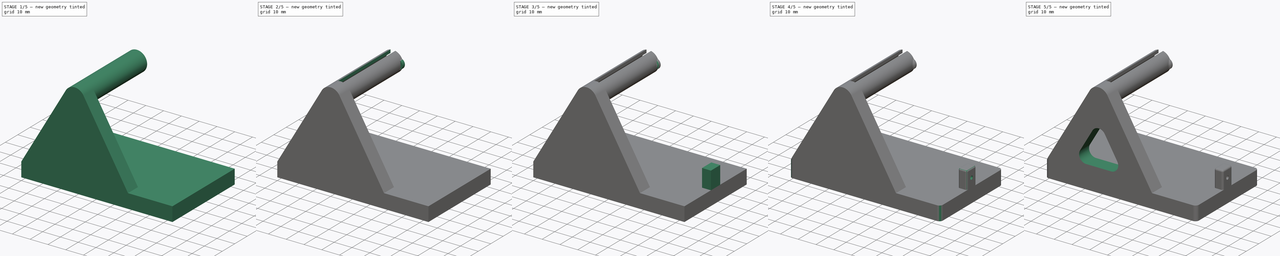
[diagram: build sequence overview — one tinted view per stage of 5, left to right]
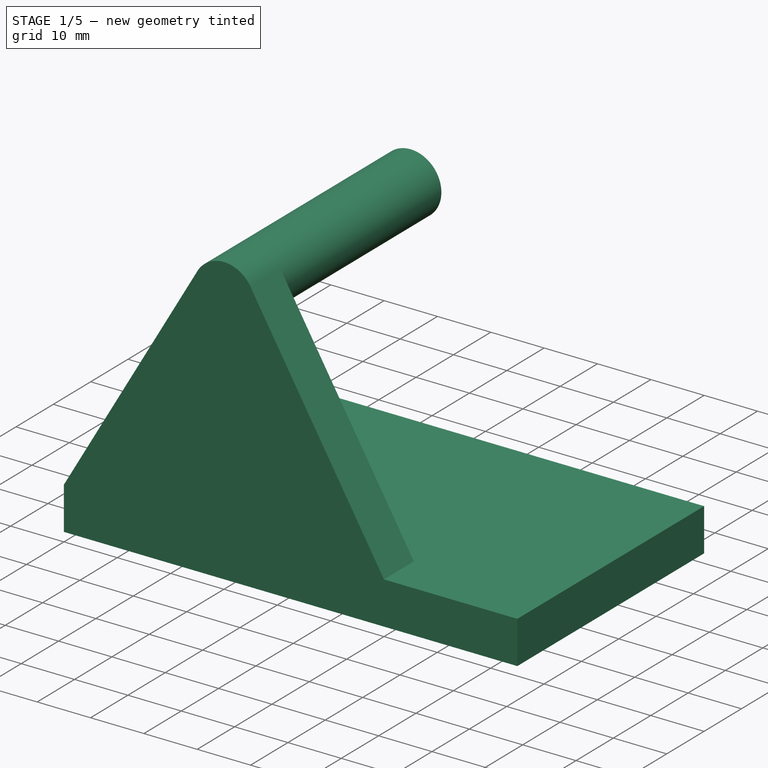
[diagram: stage 1 of 5 — iso view after this stage's code; geometry added in this stage tinted green]
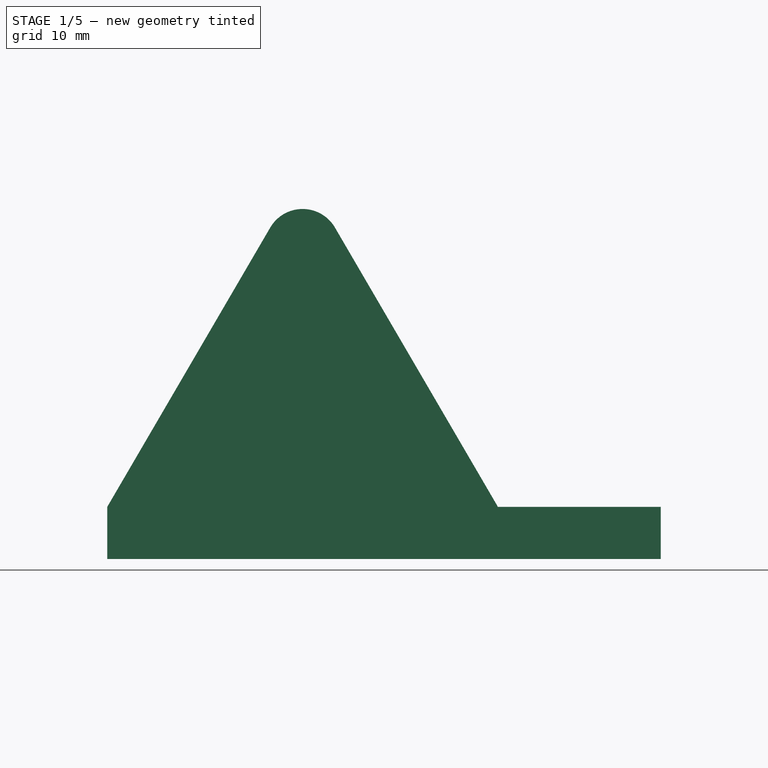
[diagram: stage 1 of 5 — front view after this stage's code; geometry added in this stage tinted green]
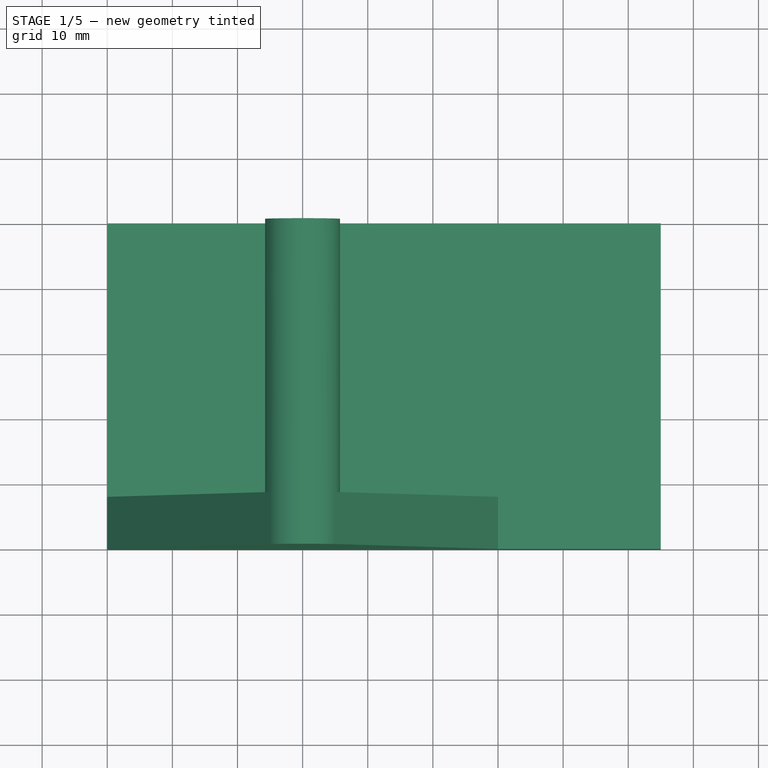
[diagram: stage 1 of 5 — top view after this stage's code; geometry added in this stage tinted green]
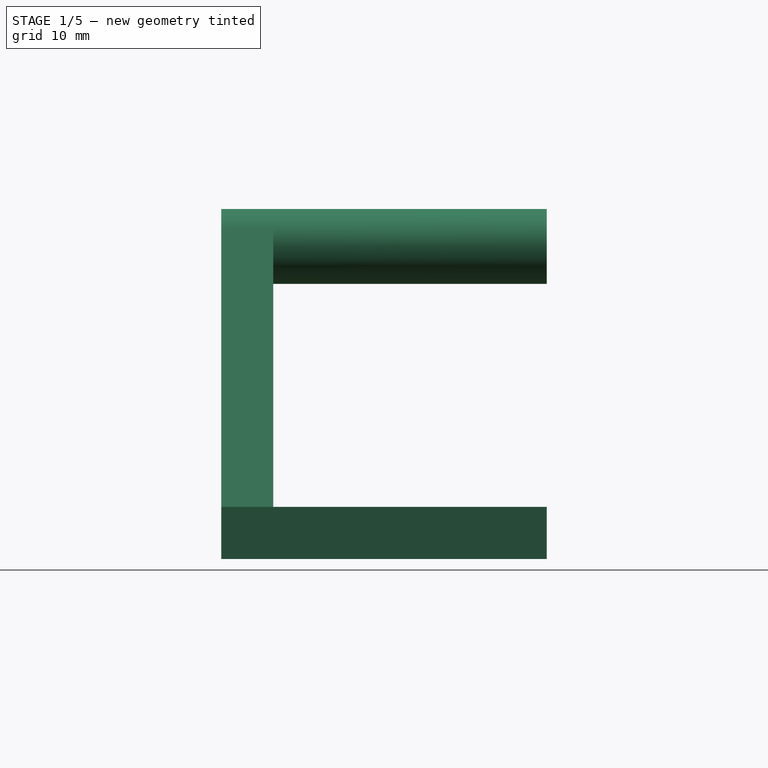
[diagram: stage 1 of 5 — right view after this stage's code; geometry added in this stage tinted green]
FCSTD DOCUMENT  (FreeCAD 0.19R24276 (Git))
Label: solder_spool_holder
License: All rights reserved
LicenseURL: http://en.wikipedia.org/wiki/All_rights_reserved
objects: Sketcher::SketchObject×9, PartDesign::Pad×5, PartDesign::Fillet×5, PartDesign::Pocket×4, PartDesign::Chamfer×4, PartDesign::Body×1
note: 46 computed .brp shape members not serialized (recipe doc carries the construction recipe); baked Part::Feature solids carry a one-line shape summary decoded from their .brp

FEATURE [Sketcher::SketchObject] Sketch
  FullyConstrained = true
  MapMode = 5
  Support = -> [XY_Plane]
  sketch-geometry (4):
    g0: LineSegment StartX=0 StartY=0 StartZ=0 EndX=85 EndY=0 EndZ=0
    g1: LineSegment StartX=85 StartY=0 StartZ=0 EndX=85 EndY=-50 EndZ=0
    g2: LineSegment StartX=85 StartY=-50 StartZ=0 EndX=0 EndY=-50 EndZ=0
    g3: LineSegment StartX=0 StartY=-50 StartZ=0 EndX=0 EndY=0 EndZ=0
  constraints (11):
    c: Coincident(g0,g1)
    c: Coincident(g1,g2)
    c: Coincident(g2,g3)
    c: Coincident(g3,g0)
    c: Horizontal(g0)
    c: Horizontal(g2)
    c: Vertical(g1)
    c: Vertical(g3)
    c: Coincident(g0,g-1)
    c: DistanceX(g0,g0) = 85
    c: DistanceY(g3,g3) = 50
FEATURE [PartDesign::Pad] Pad
  Direction = (1,1,1)
  Length = 8
  Length2 = 100
  Profile = -> Sketch
  Type = 0
FEATURE [Sketcher::SketchObject] Sketch001
  ExternalGeometry = -> [Pad]
  FullyConstrained = true
  MapMode = 5
  Placement = pos=(0,-50,0) rot=(1,0,0;1.5708rad)
  Support = -> [Pad]
  sketch-geometry (6):
    g0: LineSegment StartX=0 StartY=8 StartZ=0 EndX=25.0338 EndY=50.8981 EndZ=0
    g1: LineSegment StartX=34.9662 StartY=50.8981 StartZ=0 EndX=60 EndY=8 EndZ=0
    g2: ArcOfCircle CenterX=30 CenterY=48 CenterZ=0 NormalX=0 NormalY=0 NormalZ=1 AngleXU=0 Radius=5.75 StartAngle=0.528246 EndAngle=2.61335
    g3: GeomPoint X=30 Y=8 Z=0
    g4: LineSegment StartX=25.0338 StartY=50.8981 StartZ=0 EndX=30 EndY=48 EndZ=0
    g5: LineSegment StartX=0 StartY=8 StartZ=0 EndX=60 EndY=8 EndZ=0
  constraints (15):
    c: Coincident(g0,g-5)
    c: PointOnObject(g1,g-5)
    c: Coincident(g2,g0)
    c: Coincident(g2,g1)
    c: Horizontal(g1,g0)
    c: Distance(g2,g-5) = 40
    c: Symmetric(g0,g1,g3)
    c: Vertical(g3,g2)
    c: Radius(g2) = 5.75
    c: Coincident(g4,g0)
    c: Coincident(g4,g2)
    c: Perpendicular(g4,g0)
    c: DistanceX(g0,g1) = 60
    c: Coincident(g5,g0)
    c: Coincident(g5,g1)
FEATURE [PartDesign::Pad] Pad001
  BaseFeature = -> Pad
  Direction = (1,1,1)
  Length = 8
  Length2 = 100
  Profile = -> Sketch001
  Reversed = true
  Type = 0
FEATURE [Sketcher::SketchObject] Sketch002
  ExternalGeometry = -> [Pad001]
  FullyConstrained = true
  MapMode = 5
  Placement = pos=(0,-42,1.39e-14) rot=(0,0.707107,0.707107;3.14159rad)
  Support = -> [Pad001]
  sketch-geometry (1):
    g0: Circle CenterX=-30 CenterY=48 CenterZ=0 NormalX=0 NormalY=0 NormalZ=1 AngleXU=0 Radius=5.75
  constraints (2):
    c: Diameter(g0) = 11.5
    c: Coincident(g0,g-3)
FEATURE [PartDesign::Pad] Pad002
  BaseFeature = -> Pad001
  Direction = (1,1,1)
  Length = 42
  Length2 = 100
  Profile = -> Sketch002
  Type = 0
FEATURE [Sketcher::SketchObject] Sketch003
  ExternalGeometry = -> [Pad002]
  FullyConstrained = true
  MapMode = 5
  Placement = pos=(0,-2.51e-14,0) rot=(0,0.707107,0.707107;3.14159rad)
  Support = -> [Pad002]
  sketch-geometry (1):
    g0: Circle CenterX=-30 CenterY=48 CenterZ=0 NormalX=0 NormalY=0 NormalZ=1 AngleXU=0 Radius=4
  constraints (2):
    c: Coincident(g0,g-3)
    c: Diameter(g0) = 8
FEATURE [PartDesign::Pocket] Pocket
  BaseFeature = -> Pad002
  Length = 42
  Length2 = 100
  Profile = -> Sketch003
  Type = 0
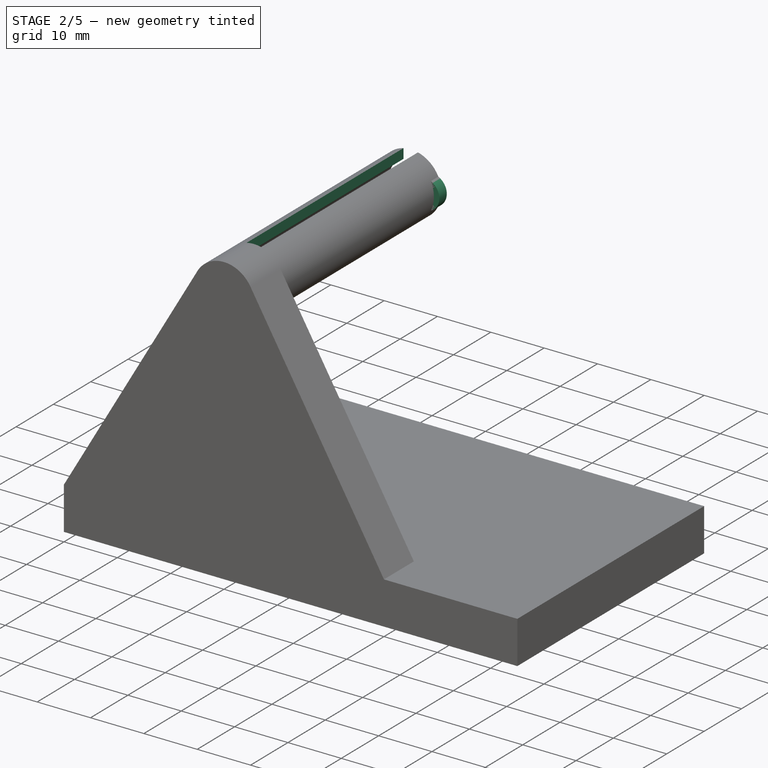
[diagram: stage 2 of 5 — iso view after this stage's code; geometry added in this stage tinted green]
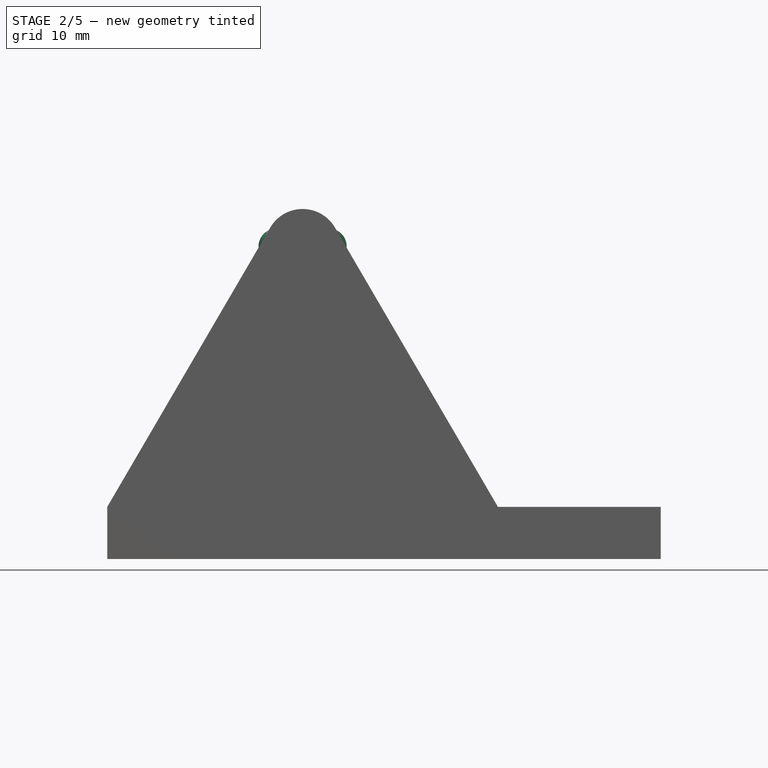
[diagram: stage 2 of 5 — front view after this stage's code; geometry added in this stage tinted green]
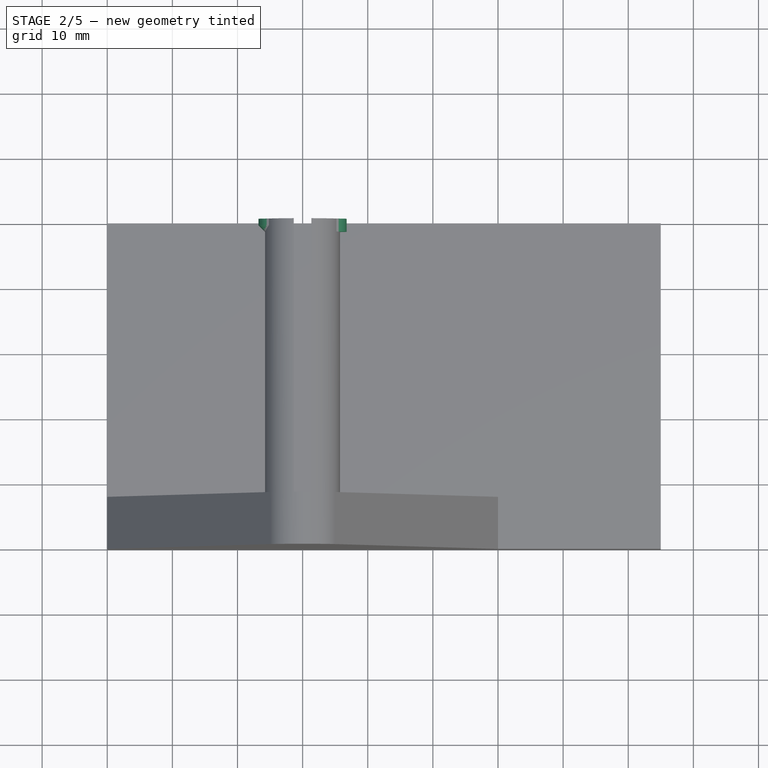
[diagram: stage 2 of 5 — top view after this stage's code; geometry added in this stage tinted green]
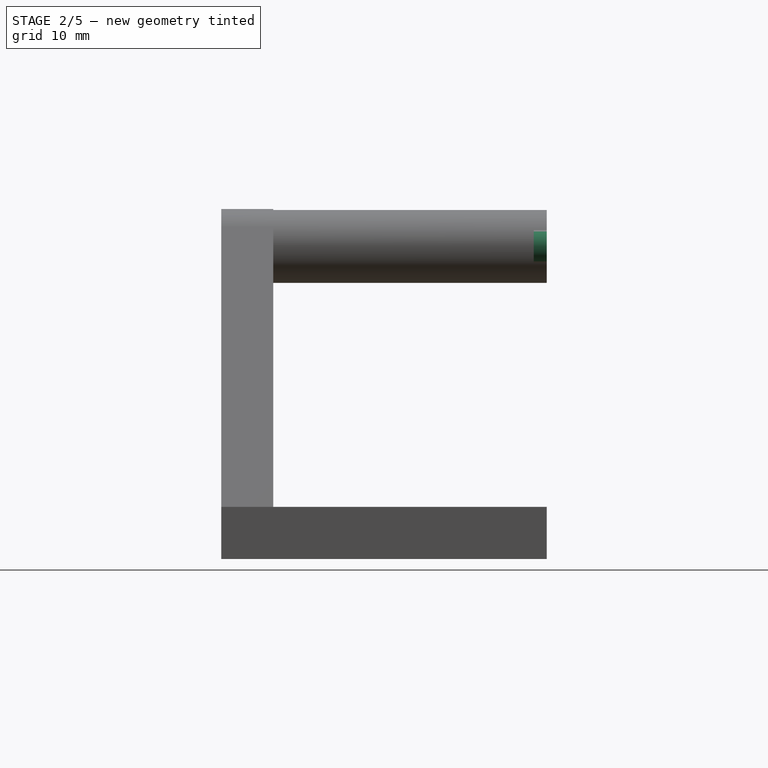
[diagram: stage 2 of 5 — right view after this stage's code; geometry added in this stage tinted green]
FEATURE [Sketcher::SketchObject] Sketch004
  ExternalGeometry = -> [Pocket]
  FullyConstrained = false
  MapMode = 5
  Placement = pos=(0,-2.51e-14,0) rot=(0,0.707107,0.707107;3.14159rad)
  Support = -> [Pocket]
  sketch-geometry (6):
    g0: LineSegment StartX=-31.3567 StartY=53.75 StartZ=0 EndX=-28.6433 EndY=53.75 EndZ=0
    g1: LineSegment StartX=-28.6433 StartY=53.75 StartZ=0 EndX=-28.6433 EndY=42.25 EndZ=0
    g2: LineSegment StartX=-28.6433 StartY=42.25 StartZ=0 EndX=-31.3567 EndY=42.25 EndZ=0
    g3: LineSegment StartX=-31.3567 StartY=42.25 StartZ=0 EndX=-31.3567 EndY=53.75 EndZ=0
    g4: LineSegment StartX=-31.3567 StartY=48 StartZ=0 EndX=-28.6433 EndY=48 EndZ=0
    g5: LineSegment StartX=-30 StartY=53.75 StartZ=0 EndX=-30 EndY=42.25 EndZ=0
  constraints (17):
    c: Coincident(g0,g1)
    c: Coincident(g1,g2)
    c: Coincident(g2,g3)
    c: Coincident(g3,g0)
    c: Horizontal(g0)
    c: Horizontal(g2)
    c: Vertical(g1)
    c: Vertical(g3)
    c: PointOnObject(g4,g3)
    c: PointOnObject(g4,g1)
    c: Horizontal(g4)
    c: PointOnObject(g5,g0)
    c: PointOnObject(g5,g2)
    c: Vertical(g5)
    c: Symmetric(g4,g4,g-4)
    c: Symmetric(g5,g5,g-4)
    c: PointOnObject(g5,g-3)
FEATURE [PartDesign::Pocket] Pocket001
  BaseFeature = -> Pocket
  Length = 42
  Length2 = 100
  Profile = -> Sketch004
  Type = 0
FEATURE [Sketcher::SketchObject] Sketch005
  ExternalGeometry = -> [Pocket001]
  FullyConstrained = true
  MapMode = 5
  Placement = pos=(0,-2.51e-14,0) rot=(0,0.707107,0.707107;3.14159rad)
  Support = -> [Pocket001]
  sketch-geometry (4):
    g0: ArcOfCircle CenterX=-26 CenterY=48 CenterZ=0 NormalX=0 NormalY=0 NormalZ=1 AngleXU=0 Radius=2.76367 StartAngle=5.15276 EndAngle=7.41361
    g1: ArcOfCircle CenterX=-30 CenterY=48 CenterZ=0 NormalX=0 NormalY=0 NormalZ=1 AngleXU=0 Radius=5.75 StartAngle=5.83339 EndAngle=6.73298
    g2: ArcOfCircle CenterX=-34 CenterY=48 CenterZ=0 NormalX=0 NormalY=0 NormalZ=1 AngleXU=0 Radius=2.76367 StartAngle=2.01117 EndAngle=4.27202
    g3: ArcOfCircle CenterX=-30 CenterY=48 CenterZ=0 NormalX=0 NormalY=0 NormalZ=1 AngleXU=0 Radius=5.75 StartAngle=2.6918 EndAngle=3.59139
  constraints (15):
    c: PointOnObject(g0,g-3)
    c: PointOnObject(g0,g-7)
    c: DistanceY(g0,g0) = 5
    c: Coincident(g-4,g0)
    c: Coincident(g1,g0)
    c: Coincident(g1,g0)
    c: PointOnObject(g-7,g1)
    c: PointOnObject(g2,g-5)
    c: PointOnObject(g2,g-5)
    c: DistanceY(g2,g2) = 5
    c: Horizontal(g2,g1)
    c: PointOnObject(g2,g-6)
    c: Coincident(g3,g2)
    c: Coincident(g3,g2)
    c: Tangent(g3,g-5)
FEATURE [PartDesign::Pad] Pad003
  BaseFeature = -> Pocket001
  Direction = (1,1,1)
  Length = 2
  Length2 = 100
  Profile = -> Sketch005
  Reversed = true
  Type = 0
FEATURE [PartDesign::Chamfer] Chamfer
  Angle = 45
  Base = -> Pad003 [Edge67]
  BaseFeature = -> Pad003
  ChamferType = 0
  FlipDirection = false
  Size = 1
  Size2 = 1
  SupportTransform = false
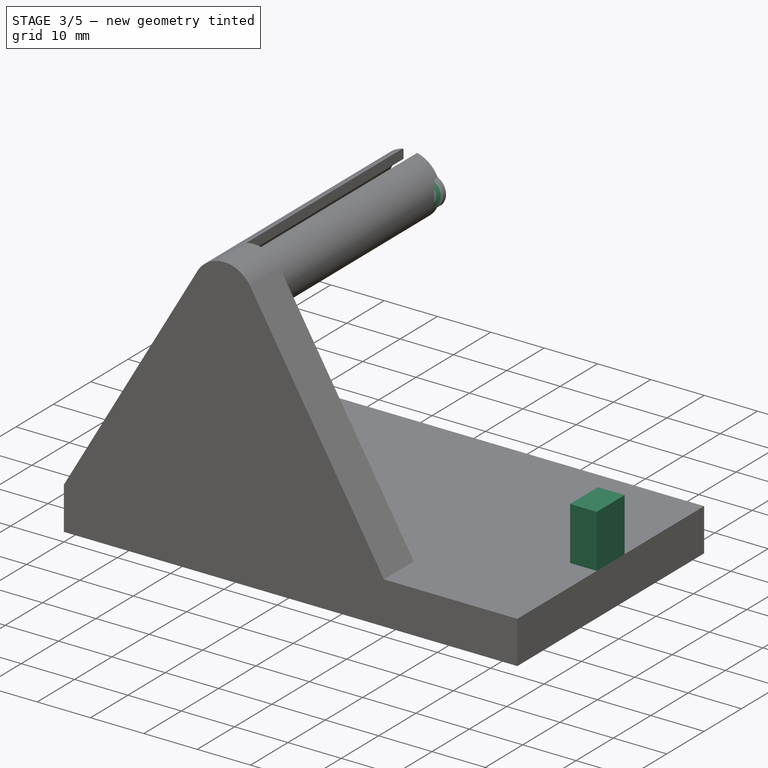
[diagram: stage 3 of 5 — iso view after this stage's code; geometry added in this stage tinted green]
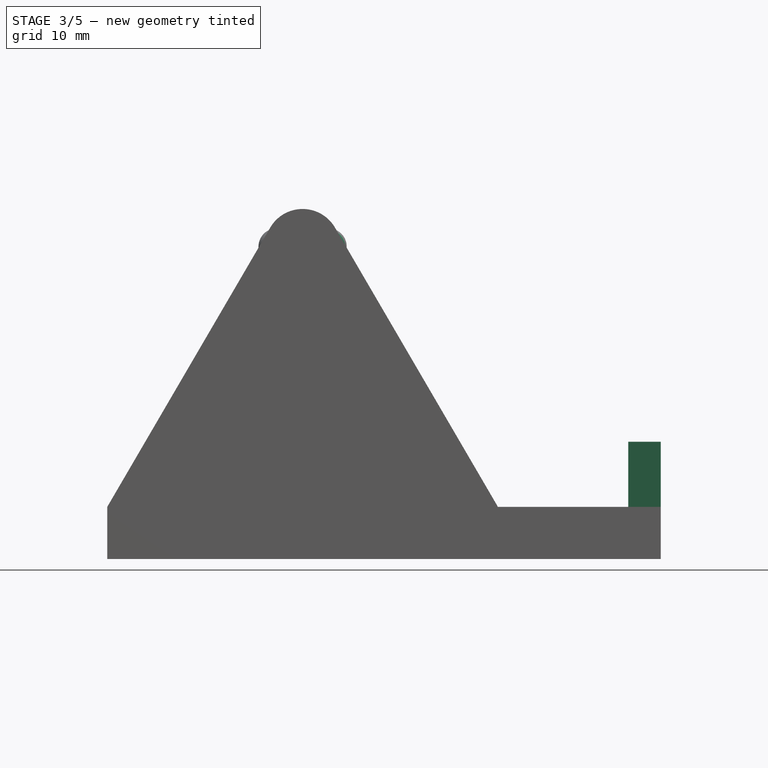
[diagram: stage 3 of 5 — front view after this stage's code; geometry added in this stage tinted green]
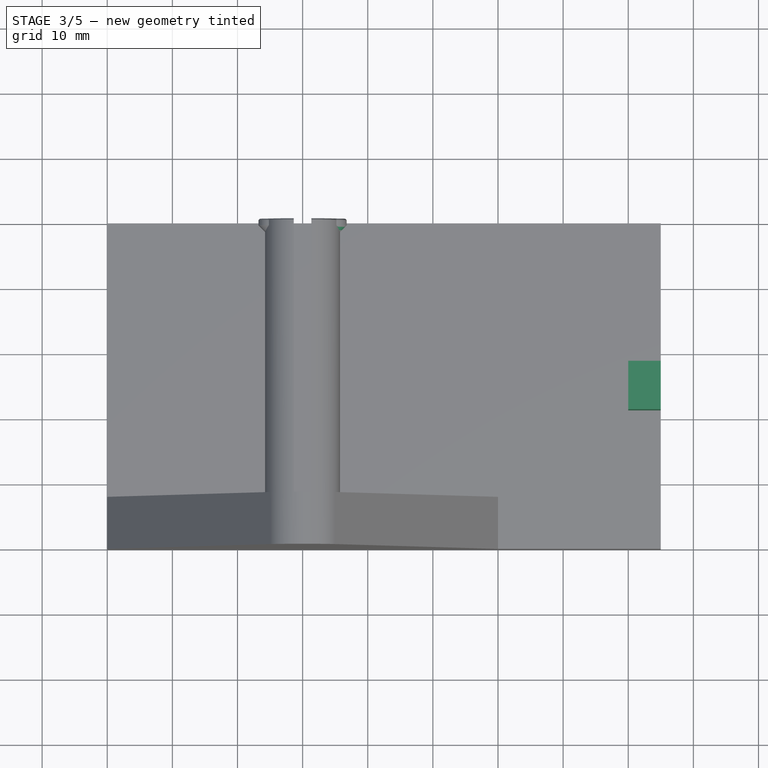
[diagram: stage 3 of 5 — top view after this stage's code; geometry added in this stage tinted green]
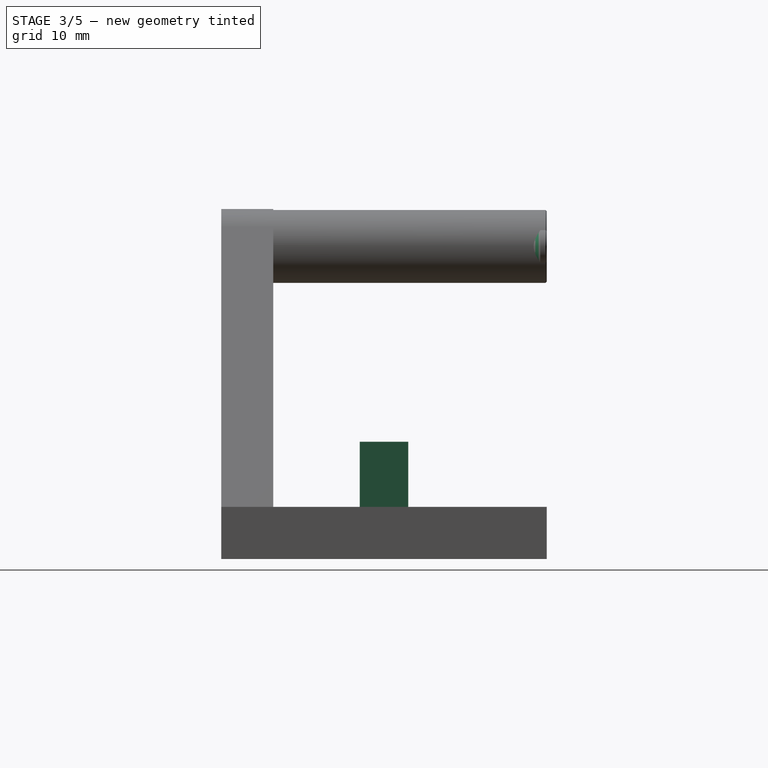
[diagram: stage 3 of 5 — right view after this stage's code; geometry added in this stage tinted green]
FEATURE [PartDesign::Chamfer] Chamfer001
  Angle = 45
  Base = -> Chamfer [Edge80]
  BaseFeature = -> Chamfer
  ChamferType = 0
  FlipDirection = false
  Size = 1
  Size2 = 1
  SupportTransform = false
FEATURE [PartDesign::Chamfer] Chamfer002
  Angle = 45
  Base = -> Chamfer001 [Edge13,Edge10,Edge3]
  BaseFeature = -> Chamfer001
  ChamferType = 0
  FlipDirection = false
  Size = 0.2
  Size2 = 1
  SupportTransform = false
FEATURE [PartDesign::Chamfer] Chamfer003
  Angle = 45
  Base = -> Chamfer002 [Edge92,Edge70,Edge66]
  BaseFeature = -> Chamfer002
  ChamferType = 0
  FlipDirection = false
  Size = 0.2
  Size2 = 1
  SupportTransform = false
FEATURE [Sketcher::SketchObject] Sketch006
  ExternalGeometry = -> [Chamfer003]
  FullyConstrained = false
  MapMode = 5
  Placement = pos=(85,0,0) rot=(0.57735,0.57735,0.57735;2.0944rad)
  Support = -> [Chamfer003]
  sketch-geometry (5):
    g0: LineSegment StartX=-28.7243 StartY=8 StartZ=0 EndX=-21.2757 EndY=8 EndZ=0
    g1: LineSegment StartX=-21.2757 StartY=8 StartZ=0 EndX=-21.2757 EndY=18 EndZ=0
    g2: LineSegment StartX=-21.2757 StartY=18 StartZ=0 EndX=-28.7243 EndY=18 EndZ=0
    g3: LineSegment StartX=-28.7243 StartY=18 StartZ=0 EndX=-28.7243 EndY=8 EndZ=0
    g4: GeomPoint X=-25 Y=8 Z=0
  constraints (11):
    c: Coincident(g0,g1)
    c: Coincident(g1,g2)
    c: Coincident(g2,g3)
    c: Coincident(g3,g0)
    c: Horizontal(g0)
    c: Horizontal(g2)
    c: Vertical(g1)
    c: Vertical(g3)
    c: Symmetric(g0,g0,g4)
    c: Symmetric(g-3,g-3,g4)
    c: DistanceY(g1,g1) = 10
FEATURE [PartDesign::Pad] Pad004
  BaseFeature = -> Chamfer003
  Direction = (1,1,1)
  Length = 5
  Length2 = 100
  Profile = -> Sketch006
  Reversed = true
  Type = 0
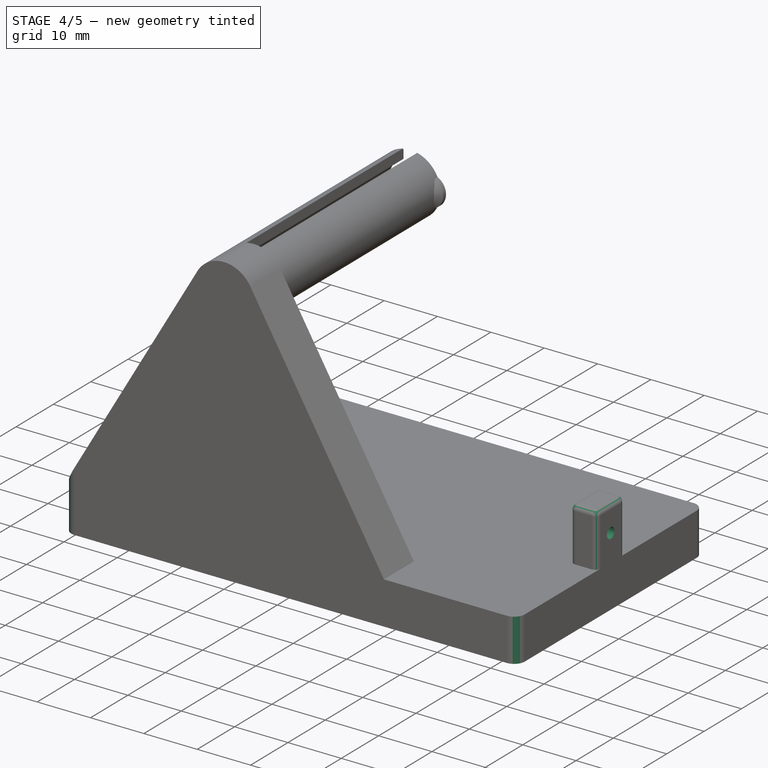
[diagram: stage 4 of 5 — iso view after this stage's code; geometry added in this stage tinted green]
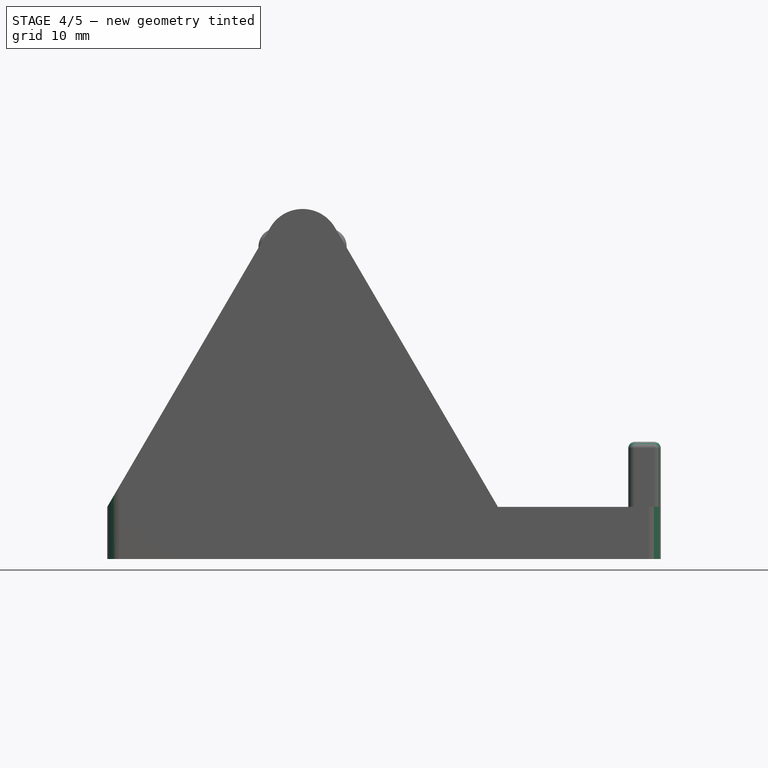
[diagram: stage 4 of 5 — front view after this stage's code; geometry added in this stage tinted green]
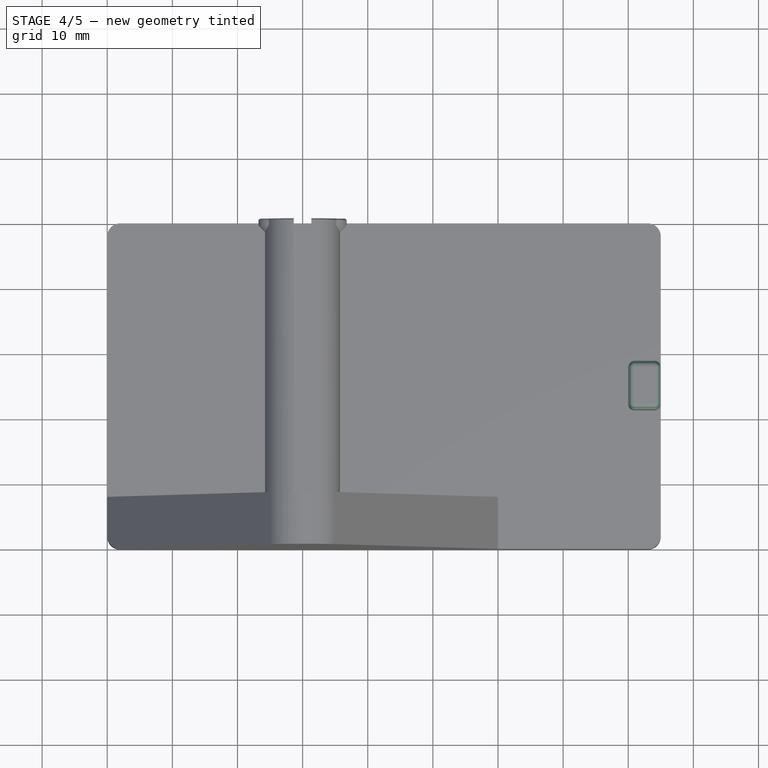
[diagram: stage 4 of 5 — top view after this stage's code; geometry added in this stage tinted green]
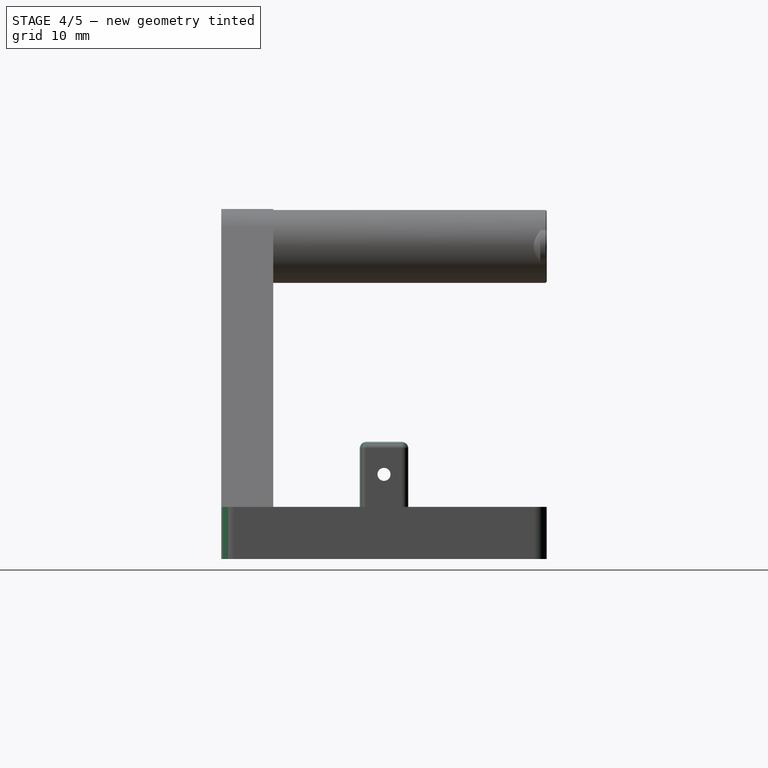
[diagram: stage 4 of 5 — right view after this stage's code; geometry added in this stage tinted green]
FEATURE [Sketcher::SketchObject] Sketch007
  ExternalGeometry = -> [Pad004]
  FullyConstrained = true
  MapMode = 5
  Placement = pos=(85,0,0) rot=(0.57735,0.57735,0.57735;2.0944rad)
  Support = -> [Pad004]
  sketch-geometry (2):
    g0: Circle CenterX=-25 CenterY=13 CenterZ=0 NormalX=0 NormalY=0 NormalZ=1 AngleXU=0 Radius=1
    g1: LineSegment StartX=-28.7243 StartY=13 StartZ=0 EndX=-21.2757 EndY=13 EndZ=0
  constraints (5):
    c: PointOnObject(g1,g-4)
    c: Horizontal(g1)
    c: Symmetric(g1,g1,g0)
    c: Symmetric(g-3,g-3,g1)
    c: Radius(g0) = 1
FEATURE [PartDesign::Pocket] Pocket002
  BaseFeature = -> Pad004
  Length = 5
  Length2 = 100
  Profile = -> Sketch007
  Type = 1
FEATURE [PartDesign::Fillet] Fillet
  Base = -> Pocket002 [Edge103,Edge99,Edge102,Edge97,Edge125,Edge100,Edge96,Edge98]
  BaseFeature = -> Pocket002
  Radius = 1
  SupportTransform = false
FEATURE [PartDesign::Fillet] Fillet001
  Base = -> Fillet [Edge31,Edge32,Edge54,Edge37]
  BaseFeature = -> Fillet
  Radius = 2
  SupportTransform = false
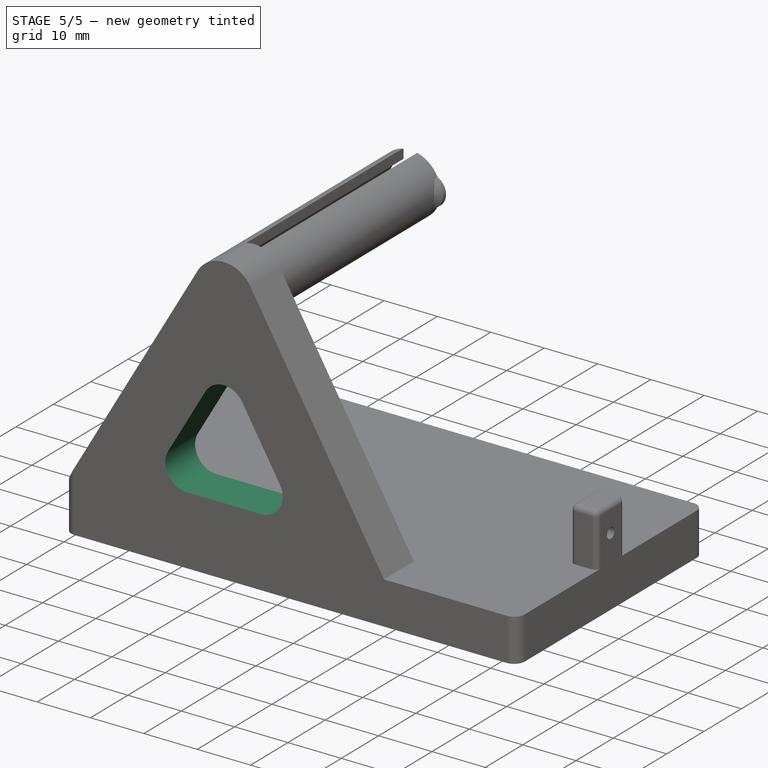
[diagram: stage 5 of 5 — iso view after this stage's code; geometry added in this stage tinted green]
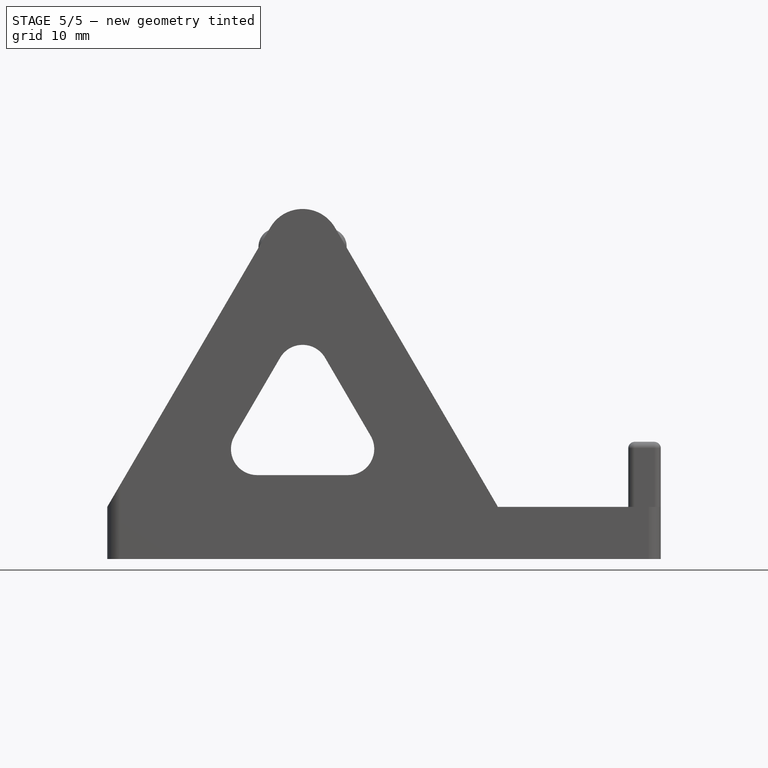
[diagram: stage 5 of 5 — front view after this stage's code; geometry added in this stage tinted green]
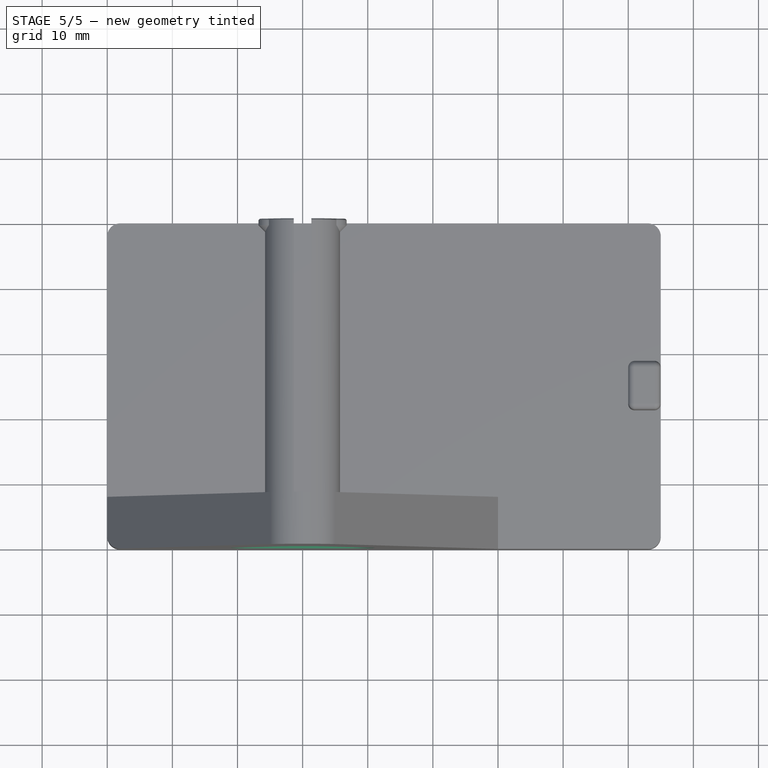
[diagram: stage 5 of 5 — top view after this stage's code; geometry added in this stage tinted green]
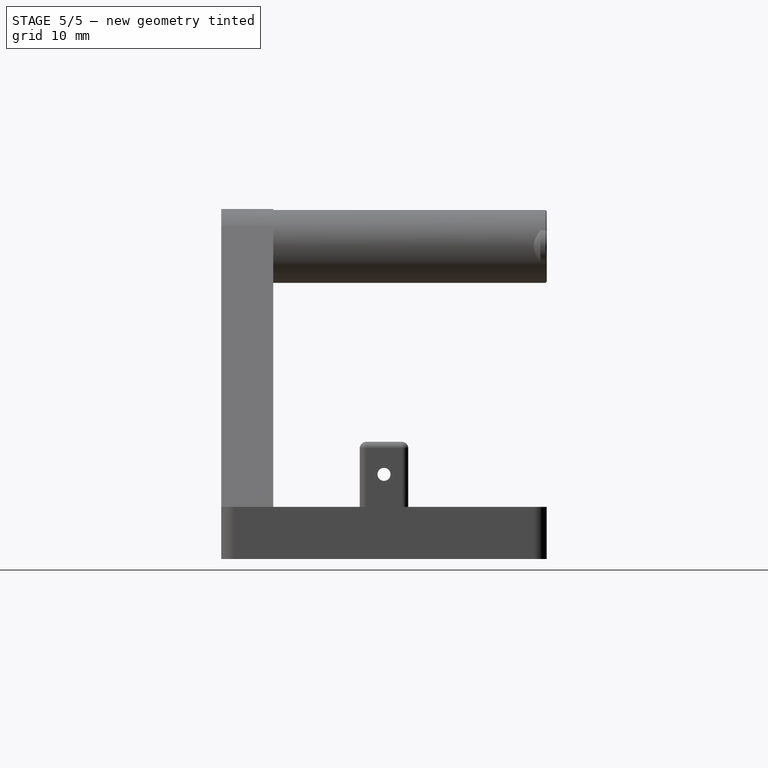
[diagram: stage 5 of 5 — right view after this stage's code; geometry added in this stage tinted green]
FEATURE [Sketcher::SketchObject] Sketch008
  ExternalGeometry = -> [Fillet001]
  FullyConstrained = false
  MapMode = 5
  Placement = pos=(0,-50,1.65e-14) rot=(1,0,0;1.5708rad)
  Support = -> [Fillet001]
  sketch-geometry (7):
    g0: LineSegment StartX=16.0355 StartY=12.891 StartZ=0 EndX=30 EndY=36.8207 EndZ=0
    g1: LineSegment StartX=16.0355 StartY=12.891 StartZ=0 EndX=43.9645 EndY=12.891 EndZ=0
    g2: LineSegment StartX=30 StartY=36.8207 StartZ=0 EndX=43.9645 EndY=12.891 EndZ=0
    g3: GeomPoint X=58 Y=11.4272 Z=0
    g4: GeomPoint X=30 Y=11.4272 Z=0
    g5: LineSegment StartX=30 StartY=38.6477 StartZ=0 EndX=30 EndY=9.79085 EndZ=0
    g6: GeomPoint X=30 Y=12.891 Z=0
  constraints (13):
    c: Horizontal(g1)
    c: Parallel(g2,g-4)
    c: Parallel(g0,g-3)
    c: Coincident(g0,g2)
    c: Coincident(g0,g1)
    c: Coincident(g1,g2)
    c: PointOnObject(g3,g-4)
    c: Horizontal(g3,g-3)
    c: Symmetric(g-3,g3,g4)
    c: Vertical(g5)
    c: PointOnObject(g4,g5)
    c: PointOnObject(g6,g5)
    c: Symmetric(g0,g1,g6)
FEATURE [PartDesign::Pocket] Pocket003
  BaseFeature = -> Fillet001
  Length = 5
  Length2 = 100
  Profile = -> Sketch008
  Type = 1
FEATURE [PartDesign::Fillet] Fillet002
  Base = -> Pocket003 [Edge111]
  BaseFeature = -> Pocket003
  Radius = 4
  SupportTransform = false
FEATURE [PartDesign::Fillet] Fillet003
  Base = -> Fillet002 [Edge21]
  BaseFeature = -> Fillet002
  Radius = 4
  SupportTransform = false
FEATURE [PartDesign::Fillet] Fillet004
  Base = -> Fillet003 [Edge18]
  BaseFeature = -> Fillet003
  Radius = 4
  SupportTransform = false
FEATURE [PartDesign::Body] Body
  Group = -> [Sketch,Pad,Sketch001,Pad001,Sketch002,Pad002,Sketch003,Pocket,Sketch004,Pocket001,Sketch005,Pad003,Chamfer,Chamfer001,Chamfer002,Chamfer003,Sketch006,Pad004,Sketch007,Pocket002,Fillet,Fillet001,Sketch008,Pocket003,Fillet002,Fillet003,Fillet004]
  Origin = -> Origin
  Tip = -> Fillet004
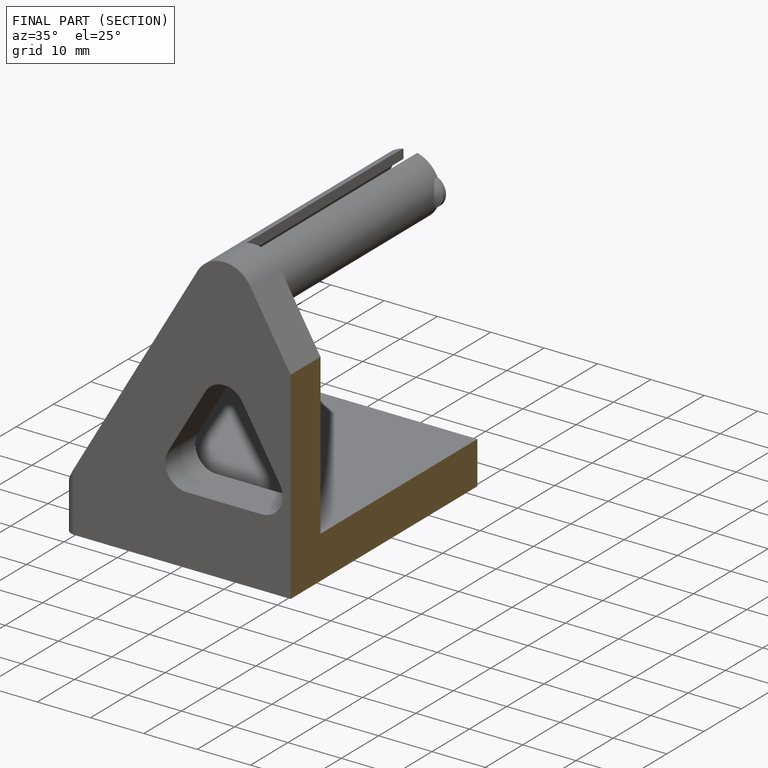
[diagram: finished part — half-section view (interior)]
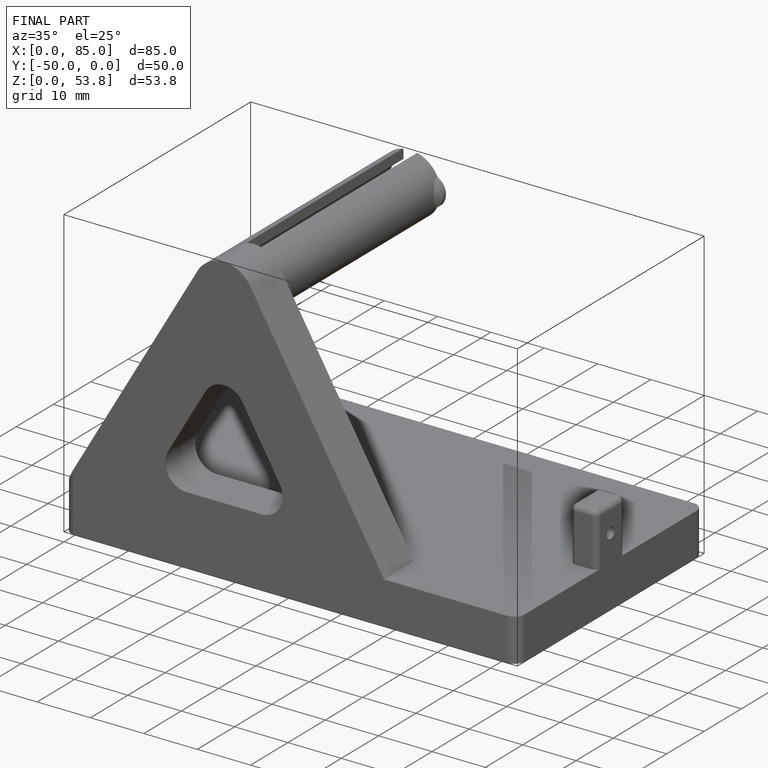
[diagram: finished part — iso view with bounding-box wireframe]
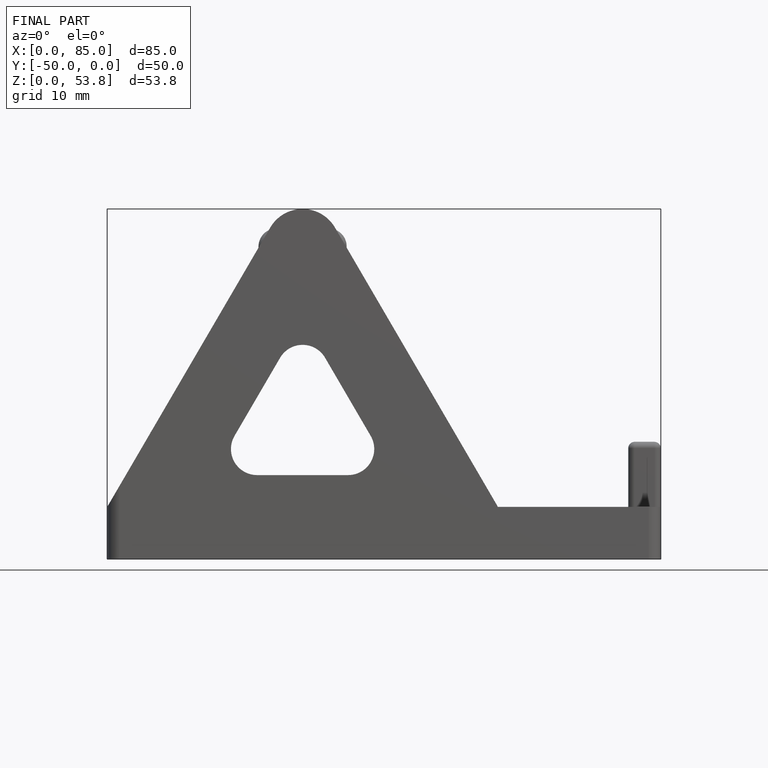
[diagram: finished part — front view with bounding-box wireframe]
